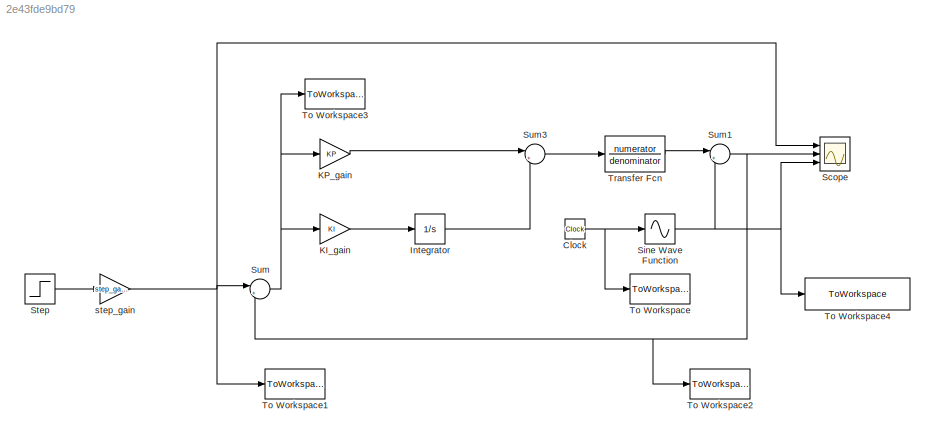
MODEL slx_2e43fde9bd79
KIND model
CONFIG AbsTol = auto
CONFIG EnableMultiTasking = off
CONFIG FixedStep = auto
CONFIG MaxStep = auto
CONFIG MinStep = auto
CONFIG RelTol = 1e-3
CONFIG SampleTimeConstraint = Unconstrained
CONFIG Solver = ode45
CONFIG SolverName = ode45
CONFIG StartTime = 0.0
CONFIG StopTime = 2
WORKSPACE source: external: MAT-File  (data not in archive)
BLOCK [Clock] Clock
BLOCK [Integrator] Integrator
  Ports = [1, 1]
BLOCK [Gain] KI_gain
  Gain = KI
  OutDataTypeStr = Inherit: Inherit via internal rule
  ParamDataTypeStr = Inherit: Inherit via internal rule
  SaturateOnIntegerOverflow = off
BLOCK [Gain] KP_gain
  Gain = KP
  OutDataTypeStr = Inherit: Inherit via internal rule
  ParamDataTypeStr = Inherit: Inherit via internal rule
  SaturateOnIntegerOverflow = off
BLOCK [Scope] Scope
  Floating = off
  NumInputPorts = 3
  Ports = [3]
  ScopeSpecificationString = Simulink.scopes.TimeScopeBlockCfg('CurrentConfiguration', extmgr.ConfigurationSet(extmgr.Configuration('Core','General UI',true),extmgr.Configuration('Core','Source UI',true),extmgr.Configuration('Sources','WiredSimulink',true),extmgr.Configuration('Visuals','Time Domain',true,'SerializedDisplays',{struct('MinYLimReal','-0.75717','MaxYLimReal','1.79814','YLabelReal','','MinYLimMag','0.00000','MaxY...<+1734ch>
BLOCK [Sin] Sine Wave Function
  Amplitude = disturbance_amplitude
  Bias = disturbance_offset
  Frequency = disturbance_frequency
  Phase = disturbance_phase
  Ports = [1, 1]
  SampleTime = 0
  TimeSource = Use external signal
BLOCK [Step] Step
  SampleTime = 0
  Time = step_time
BLOCK [Sum] Sum
  IconShape = round
  InputSameDT = off
  Inputs = |+-
  OutDataTypeStr = Inherit: Inherit via internal rule
  Ports = [2, 1]
  SaturateOnIntegerOverflow = off
BLOCK [Sum] Sum1
  IconShape = round
  InputSameDT = off
  Inputs = |+-
  OutDataTypeStr = Inherit: Inherit via internal rule
  Ports = [2, 1]
  SaturateOnIntegerOverflow = off
BLOCK [Sum] Sum3
  IconShape = round
  InputSameDT = off
  Inputs = |++
  OutDataTypeStr = Inherit: Inherit via internal rule
  Ports = [2, 1]
  SaturateOnIntegerOverflow = off
BLOCK [ToWorkspace] To Workspace
  FixptAsFi = on
  MaxDataPoints = inf
  Ports = [1]
  SampleTime = -1
  Save2DSignal = 3-D array (concatenate along third dimension)
  VariableName = t_sim
BLOCK [ToWorkspace] To Workspace1
  FixptAsFi = on
  MaxDataPoints = inf
  Ports = [1]
  SampleTime = -1
  Save2DSignal = 3-D array (concatenate along third dimension)
  VariableName = r_sim
BLOCK [ToWorkspace] To Workspace2
  FixptAsFi = on
  MaxDataPoints = inf
  Ports = [1]
  SampleTime = -1
  Save2DSignal = 3-D array (concatenate along third dimension)
  VariableName = y_sim
BLOCK [ToWorkspace] To Workspace3
  FixptAsFi = on
  MaxDataPoints = inf
  Ports = [1]
  SampleTime = -1
  Save2DSignal = 3-D array (concatenate along third dimension)
  VariableName = e_sim
BLOCK [ToWorkspace] To Workspace4
  FixptAsFi = on
  MaxDataPoints = inf
  Ports = [1]
  SampleTime = -1
  Save2DSignal = 3-D array (concatenate along third dimension)
  VariableName = disturbance_sim
BLOCK [TransferFcn] Transfer Fcn
  Denominator = denominator
  Numerator = numerator
BLOCK [Gain] step_gain
  Gain = step_gain
  OutDataTypeStr = Inherit: Inherit via internal rule
  ParamDataTypeStr = Inherit: Inherit via internal rule
  SaturateOnIntegerOverflow = off
NET Clock:1 -> Sine Wave Function:1, To Workspace:1
LINE Integrator:1 -> Sum3:2
LINE KI_gain:1 -> Integrator:1
LINE KP_gain:1 -> Sum3:1
NET Sine Wave Function:1 -> Scope:3, Sum1:2, To Workspace4:1
LINE Step:1 -> step_gain:1
NET Sum1:1 -> Scope:2, Sum:2, To Workspace2:1
LINE Sum3:1 -> Transfer Fcn:1
NET Sum:1 -> KI_gain:1, KP_gain:1, To Workspace3:1
LINE Transfer Fcn:1 -> Sum1:1
NET step_gain:1 -> Scope:1, Sum:1, To Workspace1:1
note: NET lines group one-source signal fan-out (src -> all destinations, sorted); 1:1 wires keep LINE
